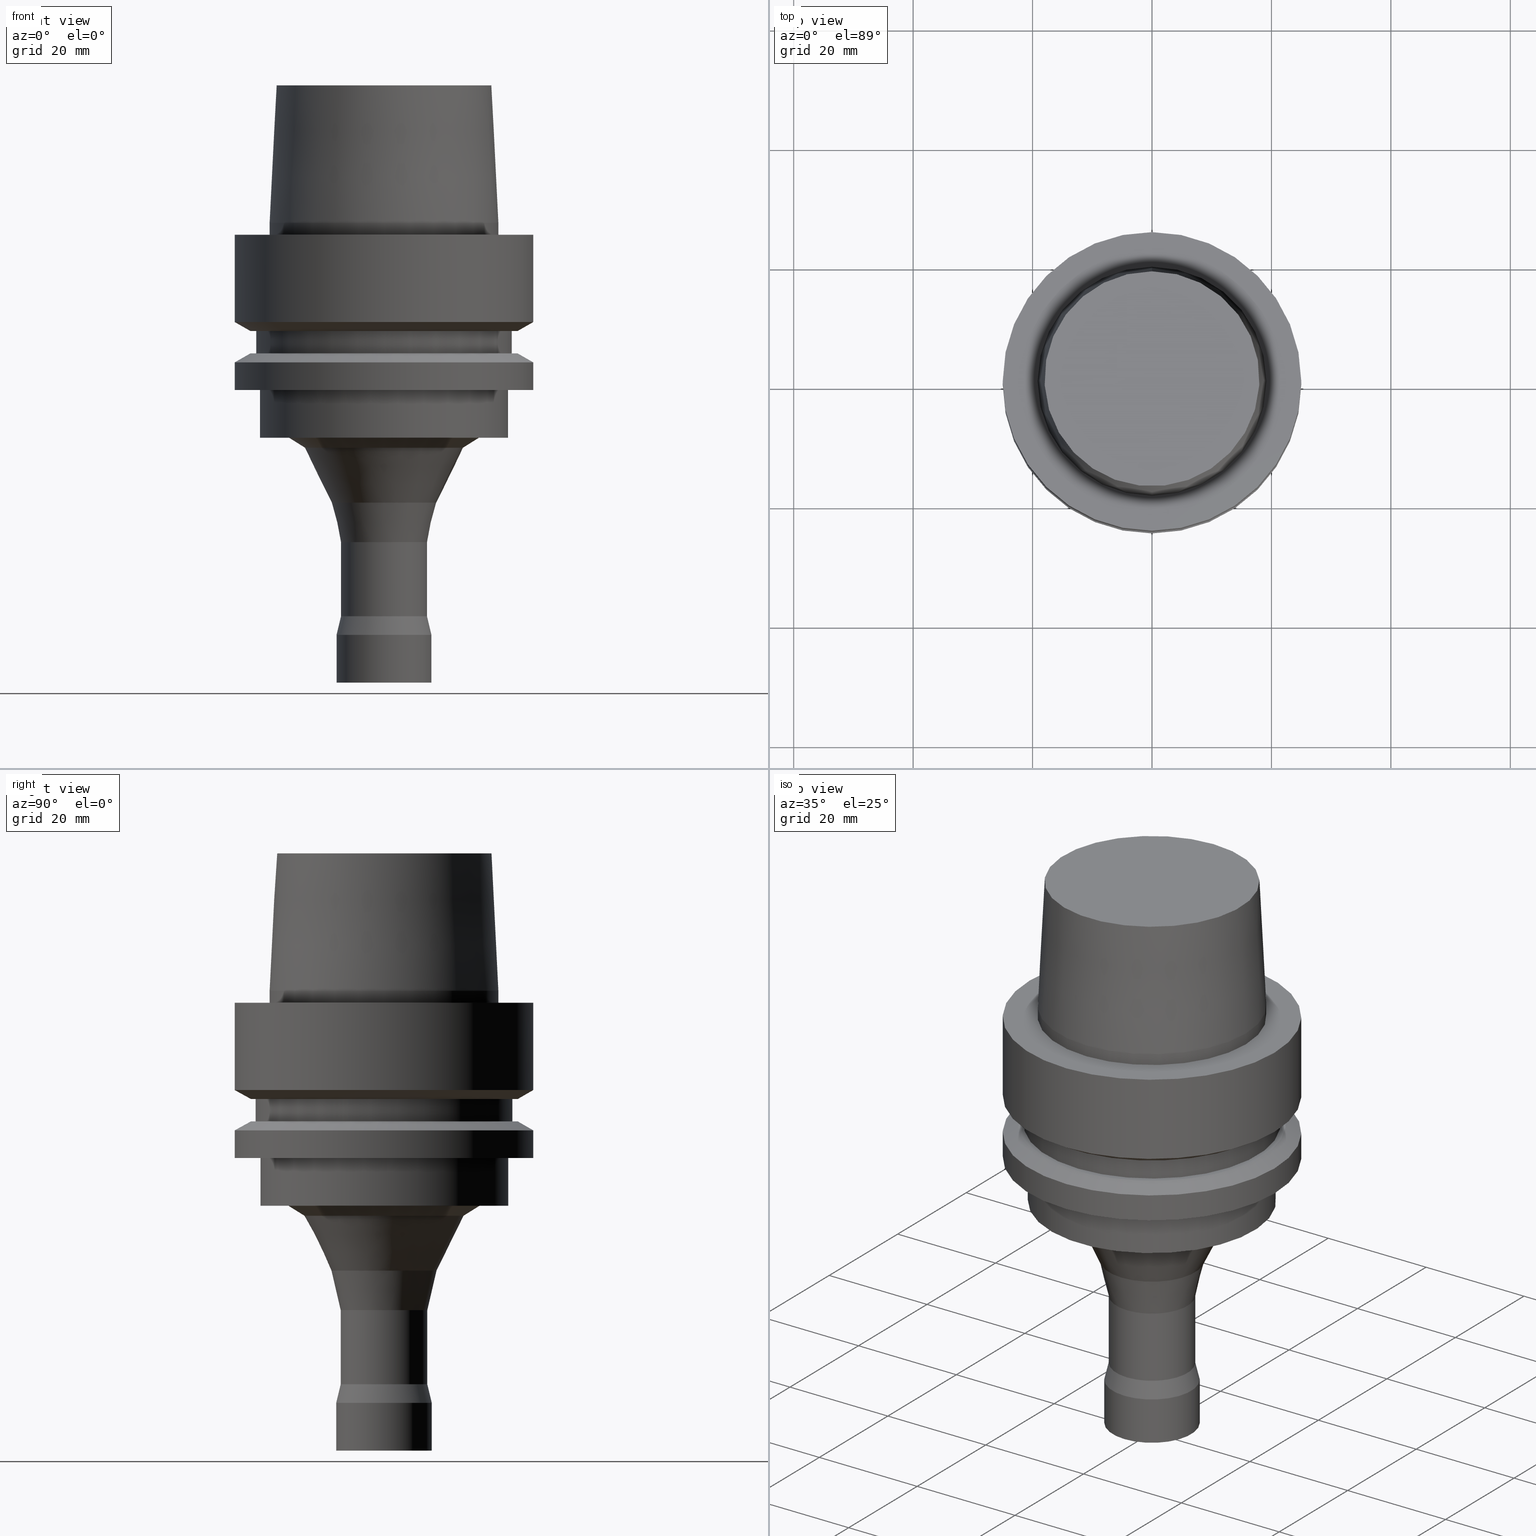
[diagram: canonical four-view strip — front | top / right | iso, engineering-drawing reading convention]
A machine part, canonical four-view strip (front | top / right | iso — engineering-drawing reading convention). The complete STEP part file that produces these views, byte-faithful:
ISO-10303-21;
HEADER;
FILE_DESCRIPTION((''),'1');
FILE_NAME('//Big_tech03/bigt/Translate/21_\X2\8F2A90ED7DDA\X0\-DXF/71_\X2\5207524A5DE55177\X0\/01_\X2\30A830F330C930DF30EB52A05DE5\X0\/02_\X2\30D530EB30AB30C330C830DF30EB\X0\ FCR/HSK/A 50/HSK-A50-FCR16082-75.stp','2012-05-31T01:29:55',(''),(''),'Spatial Interop R18','Kubotek KeyCreator V8.5.1 (14335)',' ');
FILE_SCHEMA(('CONFIG_CONTROL_DESIGN'));
ENDSEC;
DATA;
#1=DESIGN_CONTEXT('',#27,'design');
#2=APPLICATION_PROTOCOL_DEFINITION('INTERNATIONAL STANDARD','config_control_design',1994,#27);
#3=PRODUCT_CATEGORY_RELATIONSHIP('NONE','NONE',#28,#29);
#4=DATE_AND_TIME(#30,#31);
#5=DATE_TIME_ROLE('creation_date');
#6=DATE_TIME_ROLE('classification_date');
#7=PERSON_AND_ORGANIZATION_ROLE('creator');
#8=PERSON_AND_ORGANIZATION_ROLE('design_supplier');
#9=PERSON_AND_ORGANIZATION_ROLE('classification_officer');
#10=PERSON_AND_ORGANIZATION_ROLE('design_owner');
#11=APPROVAL_PERSON_ORGANIZATION(#32,#33,#34);
#12=APPROVAL_DATE_TIME(#4,#33);
#13=CC_DESIGN_APPROVAL(#33,(#35,#36,#37));
#14=CC_DESIGN_DATE_AND_TIME_ASSIGNMENT(#4,#5,(#37));
#15=CC_DESIGN_DATE_AND_TIME_ASSIGNMENT(#4,#6,(#35));
#16=CC_DESIGN_PERSON_AND_ORGANIZATION_ASSIGNMENT(#32,#10,(#38));
#17=CC_DESIGN_PERSON_AND_ORGANIZATION_ASSIGNMENT(#32,#7,(#37));
#18=CC_DESIGN_PERSON_AND_ORGANIZATION_ASSIGNMENT(#32,#7,(#36));
#19=CC_DESIGN_PERSON_AND_ORGANIZATION_ASSIGNMENT(#32,#8,(#36));
#20=CC_DESIGN_SECURITY_CLASSIFICATION(#35,(#36));
#21=CC_DESIGN_PERSON_AND_ORGANIZATION_ASSIGNMENT(#32,#9,(#35));
#22=SHAPE_DEFINITION_REPRESENTATION(#39,#40);
#23= (GEOMETRIC_REPRESENTATION_CONTEXT(3)GLOBAL_UNCERTAINTY_ASSIGNED_CONTEXT((#43))GLOBAL_UNIT_ASSIGNED_CONTEXT((#45,#46,#47))REPRESENTATION_CONTEXT('NONE','WORKSPACE'));
#27=APPLICATION_CONTEXT('CONFIGURATION CONTROLLED 3D DESIGNS OF MECHANICAL PARTS AND ASSEMBLIES');
#28=PRODUCT_CATEGORY('part','NONE');
#29=PRODUCT_RELATED_PRODUCT_CATEGORY('detail',' ',(#38));
#30=CALENDAR_DATE(2012,31,4);
#31=LOCAL_TIME(10,29,55.0,#49);
#32=PERSON_AND_ORGANIZATION(#50,#51);
#33=APPROVAL(#52,'SOLID MODEL');
#34=APPROVAL_ROLE('APPROVED');
#35=SECURITY_CLASSIFICATION('','',#53);
#36=PRODUCT_DEFINITION_FORMATION_WITH_SPECIFIED_SOURCE(' ','NONE',#38,.NOT_KNOWN.);
#37=PRODUCT_DEFINITION('NONE','NONE',#36,#1);
#38=PRODUCT('1','1','PART-1-DESC',(#54));
#39=PRODUCT_DEFINITION_SHAPE('NONE','NONE',#37);
#40=ADVANCED_BREP_SHAPE_REPRESENTATION('1',(#55,#56),#23);
#43=UNCERTAINTY_MEASURE_WITH_UNIT(LENGTH_MEASURE(1.0E-006),#45,'','');
#45= (CONVERSION_BASED_UNIT('MILLIMETRE',#59)LENGTH_UNIT()NAMED_UNIT(#62));
#46= (NAMED_UNIT(#64)PLANE_ANGLE_UNIT()SI_UNIT($,.RADIAN.));
#47= (NAMED_UNIT(#64)SOLID_ANGLE_UNIT()SI_UNIT($,.STERADIAN.));
#49=COORDINATED_UNIVERSAL_TIME_OFFSET(9,0,.AHEAD.);
#50=PERSON('','UNSPECIFIED',$,$,$,$);
#51=ORGANIZATION('UNSPECIFIED','UNSPECIFIED','UNSPECIFIED');
#52=APPROVAL_STATUS('approved');
#53=SECURITY_CLASSIFICATION_LEVEL('unclassified');
#54=MECHANICAL_CONTEXT('',#27,'mechanical');
#55=MANIFOLD_SOLID_BREP('1',#70);
#56=AXIS2_PLACEMENT_3D('',#71,#72,#73);
#59=LENGTH_MEASURE_WITH_UNIT(LENGTH_MEASURE(1.0),#74);
#62=DIMENSIONAL_EXPONENTS(1.0,0.0,0.0,0.0,0.0,0.0,0.0);
#64=DIMENSIONAL_EXPONENTS(0.0,0.0,0.0,0.0,0.0,0.0,0.0);
#70=CLOSED_SHELL('',(#75,#76,#77,#78,#79,#80,#81,#82,#83,#84,#85,#86,#87,#88,#89,#90,#91,#92,#93,#94,#95));
#71=CARTESIAN_POINT('',(0.0,0.0,0.0));
#72=DIRECTION('',(0.0,0.0,1.0));
#73=DIRECTION('',(1.0,0.0,0.0));
#74= (NAMED_UNIT(#62)LENGTH_UNIT()SI_UNIT(.MILLI.,.METRE.));
#75=ADVANCED_FACE('',(#97,#98),#99,.T.);
#76=ADVANCED_FACE('',(#100,#101),#102,.T.);
#77=ADVANCED_FACE('',(#103,#104),#105,.T.);
#78=ADVANCED_FACE('',(#106,#107),#108,.T.);
#79=ADVANCED_FACE('',(#109,#110),#111,.T.);
#80=ADVANCED_FACE('',(#112),#113,.T.);
#81=ADVANCED_FACE('',(#114,#115),#116,.T.);
#82=ADVANCED_FACE('',(#117,#118),#119,.T.);
#83=ADVANCED_FACE('',(#120),#121,.T.);
#84=ADVANCED_FACE('',(#122,#123),#124,.T.);
#85=ADVANCED_FACE('',(#125,#126),#127,.T.);
#86=ADVANCED_FACE('',(#128,#129),#130,.T.);
#87=ADVANCED_FACE('',(#131,#132),#133,.T.);
#88=ADVANCED_FACE('',(#134,#135),#136,.T.);
#89=ADVANCED_FACE('',(#137,#138),#139,.T.);
#90=ADVANCED_FACE('',(#140,#141),#142,.T.);
#91=ADVANCED_FACE('',(#143,#144),#145,.T.);
#92=ADVANCED_FACE('',(#146,#147),#148,.T.);
#93=ADVANCED_FACE('',(#149,#150),#151,.T.);
#94=ADVANCED_FACE('',(#152,#153),#154,.T.);
#95=ADVANCED_FACE('',(#155,#156),#157,.T.);
#97=FACE_BOUND('',#158,.T.);
#98=FACE_BOUND('',#159,.T.);
#99=CONICAL_SURFACE('',#160,11.0480683567084,0.456871845099082);
#100=FACE_BOUND('',#161,.T.);
#101=FACE_BOUND('',#162,.T.);
#102=CONICAL_SURFACE('',#163,8.01922363,0.228435923039832);
#103=FACE_BOUND('',#164,.T.);
#104=FACE_BOUND('',#165,.T.);
#105=CYLINDRICAL_SURFACE('',#166,7.25);
#106=FACE_BOUND('',#167,.T.);
#107=FACE_BOUND('',#168,.T.);
#108=CONICAL_SURFACE('',#169,7.625,0.236426045442767);
#109=FACE_BOUND('',#170,.T.);
#110=FACE_BOUND('',#171,.T.);
#111=CYLINDRICAL_SURFACE('',#172,8.0);
#112=FACE_OUTER_BOUND('',#173,.T.);
#113=PLANE('',#174);
#114=FACE_BOUND('',#175,.T.);
#115=FACE_BOUND('',#176,.T.);
#116=CONICAL_SURFACE('',#177,14.6538447267084,1.01383408601216);
#117=FACE_BOUND('',#178,.T.);
#118=FACE_OUTER_BOUND('',#179,.T.);
#119=PLANE('',#180);
#120=FACE_OUTER_BOUND('',#181,.T.);
#121=PLANE('',#182);
#122=FACE_BOUND('',#183,.T.);
#123=FACE_BOUND('',#184,.T.);
#124=CONICAL_SURFACE('',#185,18.5750000005215,0.049958395676703);
#125=FACE_BOUND('',#186,.T.);
#126=FACE_BOUND('',#187,.T.);
#127=CYLINDRICAL_SURFACE('',#188,19.15);
#128=FACE_OUTER_BOUND('',#189,.T.);
#129=FACE_BOUND('',#190,.T.);
#130=PLANE('',#191);
#131=FACE_BOUND('',#192,.T.);
#132=FACE_BOUND('',#193,.T.);
#133=CYLINDRICAL_SURFACE('',#194,25.0);
#134=FACE_BOUND('',#195,.T.);
#135=FACE_BOUND('',#196,.T.);
#136=CONICAL_SURFACE('',#197,23.69879763,1.04719755326565);
#137=FACE_BOUND('',#198,.T.);
#138=FACE_OUTER_BOUND('',#199,.T.);
#139=PLANE('',#200);
#140=FACE_BOUND('',#201,.T.);
#141=FACE_BOUND('',#202,.T.);
#142=CYLINDRICAL_SURFACE('',#203,21.5);
#143=FACE_OUTER_BOUND('',#204,.T.);
#144=FACE_BOUND('',#205,.T.);
#145=PLANE('',#206);
#146=FACE_BOUND('',#207,.T.);
#147=FACE_BOUND('',#208,.T.);
#148=CONICAL_SURFACE('',#209,23.69879763,1.04719755326565);
#149=FACE_BOUND('',#210,.T.);
#150=FACE_BOUND('',#211,.T.);
#151=CYLINDRICAL_SURFACE('',#212,25.0);
#152=FACE_BOUND('',#213,.T.);
#153=FACE_OUTER_BOUND('',#214,.T.);
#154=PLANE('',#215);
#155=FACE_BOUND('',#216,.T.);
#156=FACE_BOUND('',#217,.T.);
#157=CYLINDRICAL_SURFACE('',#218,20.8);
#158=EDGE_LOOP('',(#219));
#159=EDGE_LOOP('',(#220));
#160=AXIS2_PLACEMENT_3D('',#221,#222,#223);
#161=EDGE_LOOP('',(#224));
#162=EDGE_LOOP('',(#225));
#163=AXIS2_PLACEMENT_3D('',#226,#227,#228);
#164=EDGE_LOOP('',(#229));
#165=EDGE_LOOP('',(#230));
#166=AXIS2_PLACEMENT_3D('',#231,#232,#233);
#167=EDGE_LOOP('',(#234));
#168=EDGE_LOOP('',(#235));
#169=AXIS2_PLACEMENT_3D('',#236,#237,#238);
#170=EDGE_LOOP('',(#239));
#171=EDGE_LOOP('',(#240));
#172=AXIS2_PLACEMENT_3D('',#241,#242,#243);
#173=EDGE_LOOP('',(#244));
#174=AXIS2_PLACEMENT_3D('',#245,#246,#247);
#175=EDGE_LOOP('',(#248));
#176=EDGE_LOOP('',(#249));
#177=AXIS2_PLACEMENT_3D('',#250,#251,#252);
#178=EDGE_LOOP('',(#253));
#179=EDGE_LOOP('',(#254));
#180=AXIS2_PLACEMENT_3D('',#255,#256,#257);
#181=EDGE_LOOP('',(#258));
#182=AXIS2_PLACEMENT_3D('',#259,#260,#261);
#183=EDGE_LOOP('',(#262));
#184=EDGE_LOOP('',(#263));
#185=AXIS2_PLACEMENT_3D('',#264,#265,#266);
#186=EDGE_LOOP('',(#267));
#187=EDGE_LOOP('',(#268));
#188=AXIS2_PLACEMENT_3D('',#269,#270,#271);
#189=EDGE_LOOP('',(#272));
#190=EDGE_LOOP('',(#273));
#191=AXIS2_PLACEMENT_3D('',#274,#275,#276);
#192=EDGE_LOOP('',(#277));
#193=EDGE_LOOP('',(#278));
#194=AXIS2_PLACEMENT_3D('',#279,#280,#281);
#195=EDGE_LOOP('',(#282));
#196=EDGE_LOOP('',(#283));
#197=AXIS2_PLACEMENT_3D('',#284,#285,#286);
#198=EDGE_LOOP('',(#287));
#199=EDGE_LOOP('',(#288));
#200=AXIS2_PLACEMENT_3D('',#289,#290,#291);
#201=EDGE_LOOP('',(#292));
#202=EDGE_LOOP('',(#293));
#203=AXIS2_PLACEMENT_3D('',#294,#295,#296);
#204=EDGE_LOOP('',(#297));
#205=EDGE_LOOP('',(#298));
#206=AXIS2_PLACEMENT_3D('',#299,#300,#301);
#207=EDGE_LOOP('',(#302));
#208=EDGE_LOOP('',(#303));
#209=AXIS2_PLACEMENT_3D('',#304,#305,#306);
#210=EDGE_LOOP('',(#307));
#211=EDGE_LOOP('',(#308));
#212=AXIS2_PLACEMENT_3D('',#309,#310,#311);
#213=EDGE_LOOP('',(#312));
#214=EDGE_LOOP('',(#313));
#215=AXIS2_PLACEMENT_3D('',#314,#315,#316);
#216=EDGE_LOOP('',(#317));
#217=EDGE_LOOP('',(#318));
#218=AXIS2_PLACEMENT_3D('',#319,#320,#321);
#219=ORIENTED_EDGE('',*,*,#322,.F.);
#220=ORIENTED_EDGE('',*,*,#323,.T.);
#221=CARTESIAN_POINT('',(2.46603571477535E-015,4.9320714295507E-015,-40.2734195115245));
#222=DIRECTION('',(-6.12323399573677E-017,-1.22464679914735E-016,1.0));
#223=DIRECTION('',(-1.23259516440783E-032,1.0,1.22464679914735E-016));
#224=ORIENTED_EDGE('',*,*,#324,.F.);
#225=ORIENTED_EDGE('',*,*,#322,.T.);
#226=CARTESIAN_POINT('',(2.95010310871314E-015,5.90020621742627E-015,-48.178839985));
#227=DIRECTION('',(-6.12323399573677E-017,-1.22464679914735E-016,1.0));
#228=DIRECTION('',(-1.23259516440783E-032,1.0,1.22464679914735E-016));
#229=ORIENTED_EDGE('',*,*,#325,.F.);
#230=ORIENTED_EDGE('',*,*,#324,.T.);
#231=CARTESIAN_POINT('',(3.5323253252493E-015,7.0646506504986E-015,-57.68725036));
#232=DIRECTION('',(-6.12323399573677E-017,-1.22464679914735E-016,1.0));
#233=DIRECTION('',(-1.23259516440783E-032,1.0,1.22464679914735E-016));
#234=ORIENTED_EDGE('',*,*,#326,.F.);
#235=ORIENTED_EDGE('',*,*,#325,.T.);
#236=CARTESIAN_POINT('',(4.00726135320497E-015,8.01452270640994E-015,-65.44354431));
#237=DIRECTION('',(6.12323399573677E-017,1.22464679914735E-016,-1.0));
#238=DIRECTION('',(-1.23259516440783E-032,1.0,1.22464679914735E-016));
#239=ORIENTED_EDGE('',*,*,#327,.F.);
#240=ORIENTED_EDGE('',*,*,#326,.T.);
#241=CARTESIAN_POINT('',(4.3474961369731E-015,8.69499227394621E-015,-71.0));
#242=DIRECTION('',(-6.12323399573677E-017,-1.22464679914735E-016,1.0));
#243=DIRECTION('',(-1.23259516440783E-032,1.0,1.22464679914735E-016));
#244=ORIENTED_EDGE('',*,*,#327,.T.);
#245=CARTESIAN_POINT('',(4.59242549680257E-015,4.00000000000001,-75.0));
#246=DIRECTION('',(6.12323399573677E-017,1.22464679914735E-016,-1.0));
#247=DIRECTION('',(-1.23259516440783E-032,1.0,1.22464679914735E-016));
#248=ORIENTED_EDGE('',*,*,#323,.F.);
#249=ORIENTED_EDGE('',*,*,#328,.F.);
#250=CARTESIAN_POINT('',(2.1332297459536E-015,4.26645949190721E-015,-34.8382855765245));
#251=DIRECTION('',(-6.12323399573677E-017,-1.22464679914735E-016,1.0));
#252=DIRECTION('',(-1.23259516440783E-032,1.0,1.22464679914735E-016));
#253=ORIENTED_EDGE('',*,*,#328,.T.);
#254=ORIENTED_EDGE('',*,*,#329,.T.);
#255=CARTESIAN_POINT('',(2.0818995585505E-015,8.0,-34.0));
#256=DIRECTION('',(6.12323399573677E-017,1.22464679914735E-016,-1.0));
#257=DIRECTION('',(-1.23259516440783E-032,1.0,1.22464679914735E-016));
#258=ORIENTED_EDGE('',*,*,#330,.F.);
#259=CARTESIAN_POINT('',(-1.53080849893419E-015,9.00000000052154,25.0));
#260=DIRECTION('',(-6.12323399573677E-017,-1.22464679914735E-016,1.0));
#261=DIRECTION('',(1.23259516440783E-032,-1.0,-1.22464679914735E-016));
#262=ORIENTED_EDGE('',*,*,#331,.F.);
#263=ORIENTED_EDGE('',*,*,#330,.T.);
#264=CARTESIAN_POINT('',(-8.26636589424463E-016,-1.65327317884893E-015,13.5));
#265=DIRECTION('',(6.12323399573677E-017,1.22464679914735E-016,-1.0));
#266=DIRECTION('',(-1.23259516440783E-032,1.0,1.22464679914735E-016));
#267=ORIENTED_EDGE('',*,*,#332,.F.);
#268=ORIENTED_EDGE('',*,*,#331,.T.);
#269=CARTESIAN_POINT('',(-6.12323399573677E-017,-1.22464679914735E-016,1.0));
#270=DIRECTION('',(-6.12323399573677E-017,-1.22464679914735E-016,1.0));
#271=DIRECTION('',(-1.23259516440783E-032,1.0,1.22464679914735E-016));
#272=ORIENTED_EDGE('',*,*,#333,.F.);
#273=ORIENTED_EDGE('',*,*,#332,.T.);
#274=CARTESIAN_POINT('',(-2.72095382543029E-031,22.075,2.70340780911778E-015));
#275=DIRECTION('',(-6.12323399573677E-017,-1.22464679914735E-016,1.0));
#276=DIRECTION('',(1.23259516440783E-032,-1.0,-1.22464679914735E-016));
#277=ORIENTED_EDGE('',*,*,#334,.F.);
#278=ORIENTED_EDGE('',*,*,#333,.T.);
#279=CARTESIAN_POINT('',(4.47684973986342E-016,8.95369947972685E-016,-7.311250465));
#280=DIRECTION('',(-6.12323399573677E-017,-1.22464679914735E-016,1.0));
#281=DIRECTION('',(-1.23259516440783E-032,1.0,1.22464679914735E-016));
#282=ORIENTED_EDGE('',*,*,#335,.F.);
#283=ORIENTED_EDGE('',*,*,#334,.T.);
#284=CARTESIAN_POINT('',(9.41370714892619E-016,1.88274142978524E-015,-15.373750465));
#285=DIRECTION('',(-6.12323399573676E-017,-1.22464679914735E-016,1.0));
#286=DIRECTION('',(-1.23259516440783E-032,1.0,1.22464679914735E-016));
#287=ORIENTED_EDGE('',*,*,#336,.F.);
#288=ORIENTED_EDGE('',*,*,#335,.T.);
#289=CARTESIAN_POINT('',(9.87371481812553E-016,21.94879763,-16.125));
#290=DIRECTION('',(6.12323399573677E-017,1.22464679914735E-016,-1.0));
#291=DIRECTION('',(-1.23259516440783E-032,1.0,1.22464679914735E-016));
#292=ORIENTED_EDGE('',*,*,#337,.F.);
#293=ORIENTED_EDGE('',*,*,#336,.T.);
#294=CARTESIAN_POINT('',(1.10218211923262E-015,2.20436423846524E-015,-18.0));
#295=DIRECTION('',(-6.12323399573677E-017,-1.22464679914735E-016,1.0));
#296=DIRECTION('',(-1.23259516440783E-032,1.0,1.22464679914735E-016));
#297=ORIENTED_EDGE('',*,*,#338,.F.);
#298=ORIENTED_EDGE('',*,*,#337,.T.);
#299=CARTESIAN_POINT('',(1.21699275665268E-015,21.94879763,-19.875));
#300=DIRECTION('',(-6.12323399573677E-017,-1.22464679914735E-016,1.0));
#301=DIRECTION('',(1.23259516440783E-032,-1.0,-1.22464679914735E-016));
#302=ORIENTED_EDGE('',*,*,#339,.F.);
#303=ORIENTED_EDGE('',*,*,#338,.T.);
#304=CARTESIAN_POINT('',(1.26299352357262E-015,2.52598704714523E-015,-20.626249535));
#305=DIRECTION('',(6.12323399573676E-017,1.22464679914735E-016,-1.0));
#306=DIRECTION('',(-1.23259516440783E-032,1.0,1.22464679914735E-016));
#307=ORIENTED_EDGE('',*,*,#340,.F.);
#308=ORIENTED_EDGE('',*,*,#339,.T.);
#309=CARTESIAN_POINT('',(1.45051756469206E-015,2.90103512938411E-015,-23.688749535));
#310=DIRECTION('',(-6.12323399573677E-017,-1.22464679914735E-016,1.0));
#311=DIRECTION('',(-1.23259516440783E-032,1.0,1.22464679914735E-016));
#312=ORIENTED_EDGE('',*,*,#341,.F.);
#313=ORIENTED_EDGE('',*,*,#340,.T.);
#314=CARTESIAN_POINT('',(1.59204083889156E-015,22.9,-26.0));
#315=DIRECTION('',(6.12323399573677E-017,1.22464679914735E-016,-1.0));
#316=DIRECTION('',(-1.23259516440783E-032,1.0,1.22464679914735E-016));
#317=ORIENTED_EDGE('',*,*,#329,.F.);
#318=ORIENTED_EDGE('',*,*,#341,.T.);
#319=CARTESIAN_POINT('',(1.83697019872103E-015,3.67394039744206E-015,-30.0));
#320=DIRECTION('',(-6.12323399573677E-017,-1.22464679914735E-016,1.0));
#321=DIRECTION('',(-1.23259516440783E-032,1.0,1.22464679914735E-016));
#322=EDGE_CURVE('',#342,#342,#343,.T.);
#323=EDGE_CURVE('',#344,#344,#345,.T.);
#324=EDGE_CURVE('',#346,#346,#347,.T.);
#325=EDGE_CURVE('',#348,#348,#349,.T.);
#326=EDGE_CURVE('',#350,#350,#351,.T.);
#327=EDGE_CURVE('',#352,#352,#353,.T.);
#328=EDGE_CURVE('',#354,#354,#355,.T.);
#329=EDGE_CURVE('',#356,#356,#357,.T.);
#330=EDGE_CURVE('',#358,#358,#359,.T.);
#331=EDGE_CURVE('',#360,#360,#361,.T.);
#332=EDGE_CURVE('',#362,#362,#363,.T.);
#333=EDGE_CURVE('',#364,#364,#365,.T.);
#334=EDGE_CURVE('',#366,#366,#367,.T.);
#335=EDGE_CURVE('',#368,#368,#369,.T.);
#336=EDGE_CURVE('',#370,#370,#371,.T.);
#337=EDGE_CURVE('',#372,#372,#373,.T.);
#338=EDGE_CURVE('',#374,#374,#375,.T.);
#339=EDGE_CURVE('',#376,#376,#377,.T.);
#340=EDGE_CURVE('',#378,#378,#379,.T.);
#341=EDGE_CURVE('',#380,#380,#381,.T.);
#342=VERTEX_POINT('',#382);
#343=CIRCLE('',#383,8.78844726);
#344=VERTEX_POINT('',#384);
#345=CIRCLE('',#385,13.3076894534169);
#346=VERTEX_POINT('',#386);
#347=CIRCLE('',#387,7.25);
#348=VERTEX_POINT('',#388);
#349=CIRCLE('',#389,7.25);
#350=VERTEX_POINT('',#390);
#351=CIRCLE('',#391,8.0);
#352=VERTEX_POINT('',#392);
#353=CIRCLE('',#393,8.0);
#354=VERTEX_POINT('',#394);
#355=CIRCLE('',#395,16.0);
#356=VERTEX_POINT('',#396);
#357=CIRCLE('',#397,20.8);
#358=VERTEX_POINT('',#398);
#359=CIRCLE('',#399,18.0000000010431);
#360=VERTEX_POINT('',#400);
#361=CIRCLE('',#401,19.15);
#362=VERTEX_POINT('',#402);
#363=CIRCLE('',#403,19.15);
#364=VERTEX_POINT('',#404);
#365=CIRCLE('',#405,25.0);
#366=VERTEX_POINT('',#406);
#367=CIRCLE('',#407,25.0);
#368=VERTEX_POINT('',#408);
#369=CIRCLE('',#409,22.39759526);
#370=VERTEX_POINT('',#410);
#371=CIRCLE('',#411,21.5);
#372=VERTEX_POINT('',#412);
#373=CIRCLE('',#413,21.5);
#374=VERTEX_POINT('',#414);
#375=CIRCLE('',#415,22.39759526);
#376=VERTEX_POINT('',#416);
#377=CIRCLE('',#417,25.0);
#378=VERTEX_POINT('',#418);
#379=CIRCLE('',#419,25.0);
#380=VERTEX_POINT('',#420);
#381=CIRCLE('',#421,20.8);
#382=CARTESIAN_POINT('',(2.74751149619399E-015,8.78844726000001,-44.87026787));
#383=AXIS2_PLACEMENT_3D('',#422,#423,#424);
#384=CARTESIAN_POINT('',(2.18455993335671E-015,13.3076894534169,-35.6765711530489));
#385=AXIS2_PLACEMENT_3D('',#425,#426,#427);
#386=CARTESIAN_POINT('',(3.15269472123229E-015,7.25000000000001,-51.4874121));
#387=AXIS2_PLACEMENT_3D('',#428,#429,#430);
#388=CARTESIAN_POINT('',(3.91195592926631E-015,7.25000000000001,-63.88708862));
#389=AXIS2_PLACEMENT_3D('',#431,#432,#433);
#390=CARTESIAN_POINT('',(4.10256677714363E-015,8.00000000000001,-67.0));
#391=AXIS2_PLACEMENT_3D('',#434,#435,#436);
#392=CARTESIAN_POINT('',(4.59242549680257E-015,8.00000000000001,-75.0));
#393=AXIS2_PLACEMENT_3D('',#437,#438,#439);
#394=CARTESIAN_POINT('',(2.0818995585505E-015,16.0,-34.0));
#395=AXIS2_PLACEMENT_3D('',#440,#441,#442);
#396=CARTESIAN_POINT('',(2.0818995585505E-015,20.8,-34.0));
#397=AXIS2_PLACEMENT_3D('',#443,#444,#445);
#398=CARTESIAN_POINT('',(-1.53080849893419E-015,18.0000000010431,25.0));
#399=AXIS2_PLACEMENT_3D('',#446,#447,#448);
#400=CARTESIAN_POINT('',(-1.22464679914736E-016,19.15,2.0));
#401=AXIS2_PLACEMENT_3D('',#449,#450,#451);
#402=CARTESIAN_POINT('',(-2.360419739841E-031,19.15,2.34519862036718E-015));
#403=AXIS2_PLACEMENT_3D('',#452,#453,#454);
#404=CARTESIAN_POINT('',(-3.08148791101958E-031,25.0,3.06161699786838E-015));
#405=AXIS2_PLACEMENT_3D('',#455,#456,#457);
#406=CARTESIAN_POINT('',(8.95369947972684E-016,25.0,-14.62250093));
#407=AXIS2_PLACEMENT_3D('',#458,#459,#460);
#408=CARTESIAN_POINT('',(9.87371481812553E-016,22.39759526,-16.125));
#409=AXIS2_PLACEMENT_3D('',#461,#462,#463);
#410=CARTESIAN_POINT('',(9.87371481812553E-016,21.5,-16.125));
#411=AXIS2_PLACEMENT_3D('',#464,#465,#466);
#412=CARTESIAN_POINT('',(1.21699275665268E-015,21.5,-19.875));
#413=AXIS2_PLACEMENT_3D('',#467,#468,#469);
#414=CARTESIAN_POINT('',(1.21699275665268E-015,22.39759526,-19.875));
#415=AXIS2_PLACEMENT_3D('',#470,#471,#472);
#416=CARTESIAN_POINT('',(1.30899429049255E-015,25.0,-21.37749907));
#417=AXIS2_PLACEMENT_3D('',#473,#474,#475);
#418=CARTESIAN_POINT('',(1.59204083889156E-015,25.0,-26.0));
#419=AXIS2_PLACEMENT_3D('',#476,#477,#478);
#420=CARTESIAN_POINT('',(1.59204083889156E-015,20.8,-26.0));
#421=AXIS2_PLACEMENT_3D('',#479,#480,#481);
#422=CARTESIAN_POINT('',(2.74751149619399E-015,5.49502299238798E-015,-44.87026787));
#423=DIRECTION('',(6.12323399573677E-017,1.22464679914735E-016,-1.0));
#424=DIRECTION('',(-1.23259516440783E-032,1.0,1.22464679914735E-016));
#425=CARTESIAN_POINT('',(2.18455993335671E-015,4.36911986671341E-015,-35.6765711530489));
#426=DIRECTION('',(6.12323399573677E-017,1.22464679914735E-016,-1.0));
#427=DIRECTION('',(-1.23259516440783E-032,1.0,1.22464679914735E-016));
#428=CARTESIAN_POINT('',(3.15269472123229E-015,6.30538944246457E-015,-51.4874121));
#429=DIRECTION('',(6.12323399573677E-017,1.22464679914735E-016,-1.0));
#430=DIRECTION('',(-1.23259516440783E-032,1.0,1.22464679914735E-016));
#431=CARTESIAN_POINT('',(3.91195592926631E-015,7.82391185853263E-015,-63.88708862));
#432=DIRECTION('',(6.12323399573677E-017,1.22464679914735E-016,-1.0));
#433=DIRECTION('',(-1.23259516440783E-032,1.0,1.22464679914735E-016));
#434=CARTESIAN_POINT('',(4.10256677714363E-015,8.20513355428726E-015,-67.0));
#435=DIRECTION('',(6.12323399573677E-017,1.22464679914735E-016,-1.0));
#436=DIRECTION('',(-1.23259516440783E-032,1.0,1.22464679914735E-016));
#437=CARTESIAN_POINT('',(4.59242549680257E-015,9.18485099360515E-015,-75.0));
#438=DIRECTION('',(6.12323399573677E-017,1.22464679914735E-016,-1.0));
#439=DIRECTION('',(-1.23259516440783E-032,1.0,1.22464679914735E-016));
#440=CARTESIAN_POINT('',(2.0818995585505E-015,4.163799117101E-015,-34.0));
#441=DIRECTION('',(-6.12323399573676E-017,-1.22464679914735E-016,1.0));
#442=DIRECTION('',(-1.23259516440783E-032,1.0,1.22464679914735E-016));
#443=CARTESIAN_POINT('',(2.0818995585505E-015,4.163799117101E-015,-34.0));
#444=DIRECTION('',(6.12323399573677E-017,1.22464679914735E-016,-1.0));
#445=DIRECTION('',(-1.23259516440783E-032,1.0,1.22464679914735E-016));
#446=CARTESIAN_POINT('',(-1.53080849893419E-015,-3.06161699786838E-015,25.0));
#447=DIRECTION('',(6.12323399573677E-017,1.22464679914735E-016,-1.0));
#448=DIRECTION('',(-1.23259516440783E-032,1.0,1.22464679914735E-016));
#449=CARTESIAN_POINT('',(-1.22464679914735E-016,-2.44929359829471E-016,2.0));
#450=DIRECTION('',(6.12323399573677E-017,1.22464679914735E-016,-1.0));
#451=DIRECTION('',(-1.23259516440783E-032,1.0,1.22464679914735E-016));
#452=CARTESIAN_POINT('',(0.0,0.0,0.0));
#453=DIRECTION('',(6.12323399573677E-017,1.22464679914735E-016,-1.0));
#454=DIRECTION('',(-1.23259516440783E-032,1.0,1.22464679914735E-016));
#455=CARTESIAN_POINT('',(0.0,0.0,0.0));
#456=DIRECTION('',(6.12323399573677E-017,1.22464679914735E-016,-1.0));
#457=DIRECTION('',(-1.23259516440783E-032,1.0,1.22464679914735E-016));
#458=CARTESIAN_POINT('',(8.95369947972685E-016,1.79073989594537E-015,-14.62250093));
#459=DIRECTION('',(6.12323399573677E-017,1.22464679914735E-016,-1.0));
#460=DIRECTION('',(-1.23259516440783E-032,1.0,1.22464679914735E-016));
#461=CARTESIAN_POINT('',(9.87371481812554E-016,1.97474296362511E-015,-16.125));
#462=DIRECTION('',(6.12323399573677E-017,1.22464679914735E-016,-1.0));
#463=DIRECTION('',(-1.23259516440783E-032,1.0,1.22464679914735E-016));
#464=CARTESIAN_POINT('',(9.87371481812554E-016,1.97474296362511E-015,-16.125));
#465=DIRECTION('',(6.12323399573677E-017,1.22464679914735E-016,-1.0));
#466=DIRECTION('',(-1.23259516440783E-032,1.0,1.22464679914735E-016));
#467=CARTESIAN_POINT('',(1.21699275665268E-015,2.43398551330536E-015,-19.875));
#468=DIRECTION('',(6.12323399573677E-017,1.22464679914735E-016,-1.0));
#469=DIRECTION('',(-1.23259516440783E-032,1.0,1.22464679914735E-016));
#470=CARTESIAN_POINT('',(1.21699275665268E-015,2.43398551330536E-015,-19.875));
#471=DIRECTION('',(6.12323399573677E-017,1.22464679914735E-016,-1.0));
#472=DIRECTION('',(-1.23259516440783E-032,1.0,1.22464679914735E-016));
#473=CARTESIAN_POINT('',(1.30899429049255E-015,2.6179885809851E-015,-21.37749907));
#474=DIRECTION('',(6.12323399573677E-017,1.22464679914735E-016,-1.0));
#475=DIRECTION('',(-1.23259516440783E-032,1.0,1.22464679914735E-016));
#476=CARTESIAN_POINT('',(1.59204083889156E-015,3.18408167778312E-015,-26.0));
#477=DIRECTION('',(6.12323399573677E-017,1.22464679914735E-016,-1.0));
#478=DIRECTION('',(-1.23259516440783E-032,1.0,1.22464679914735E-016));
#479=CARTESIAN_POINT('',(1.59204083889156E-015,3.18408167778312E-015,-26.0));
#480=DIRECTION('',(6.12323399573677E-017,1.22464679914735E-016,-1.0));
#481=DIRECTION('',(-1.23259516440783E-032,1.0,1.22464679914735E-016));
ENDSEC;
END-ISO-10303-21;
